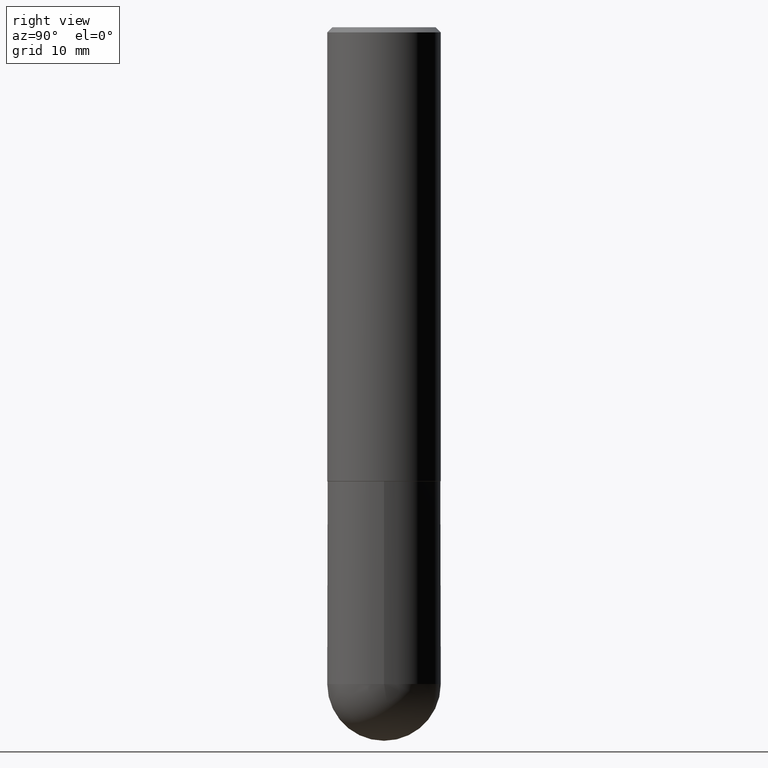
[diagram: clean part render]
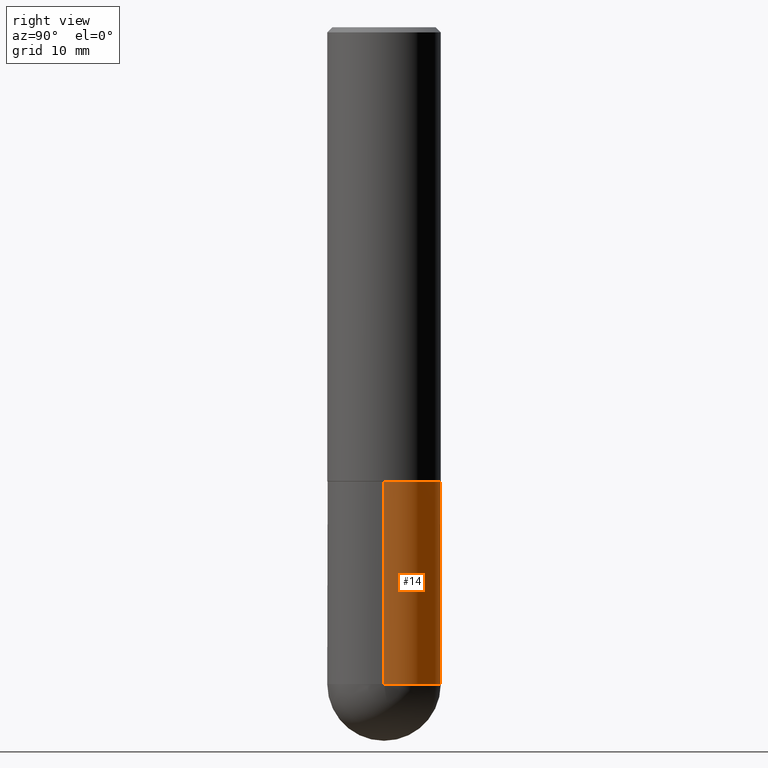
[diagram: same view with one face highlighted and labeled with its STEP entity id]
A machine part, right view. The second image highlights one B-rep face of the part: STEP entity #14.
In plain terms, the highlighted cylindrical surface (partial cylindrical patch) has radius 5.5562 mm, axis along (-0, 0, 1).
Its self-contained STEP definition (entity closure, byte-faithful):
#3 = ORIENTED_EDGE ( 'NONE', *, *, #5, .F. ) ;
#4 = CARTESIAN_POINT ( 'NONE',  ( -0.2187499999999999445, 1.554312234475218762E-15, -1.076017050993260482E-29 ) ) ;
#5 = EDGE_CURVE ( 'NONE', #64, #94, #175, .T. ) ;
#14 = ADVANCED_FACE ( 'NONE', ( #171 ), #291, .T. ) ;
#17 = ORIENTED_EDGE ( 'NONE', *, *, #140, .T. ) ;
#19 = VECTOR ( 'NONE', #24, 39.37007874015748143 ) ;
#22 = CARTESIAN_POINT ( 'NONE',  ( 0.2187499999999999445, -1.527523085743870449E-15, 1.066663669705360604E-29 ) ) ;
#23 = DIRECTION ( 'NONE',  ( -2.445468806185136597E-29, 3.491481338843145583E-15, 1.000000000000000000 ) ) ;
#24 = DIRECTION ( 'NONE',  ( -2.445468806185136877E-29, 3.491481338843145188E-15, 1.000000000000000000 ) ) ;
#36 = CARTESIAN_POINT ( 'NONE',  ( 0.2187499999999999445, -9.001475326704980594E-15, -2.531250000000000000 ) ) ;
#63 = DIRECTION ( 'NONE',  ( 1.000000000000000000, -6.982962677686266711E-15, 4.876176775795935232E-29 ) ) ;
#64 = VERTEX_POINT ( 'NONE', #155 ) ;
#67 = DIRECTION ( 'NONE',  ( -2.445468806185136597E-29, 3.491481338843145583E-15, 1.000000000000000000 ) ) ;
#68 = ORIENTED_EDGE ( 'NONE', *, *, #117, .T. ) ;
#77 = AXIS2_PLACEMENT_3D ( 'NONE', #321, #96, #247 ) ;
#94 = VERTEX_POINT ( 'NONE', #271 ) ;
#96 = DIRECTION ( 'NONE',  ( -2.445468806185136597E-29, 3.491481338843145583E-15, 1.000000000000000000 ) ) ;
#100 = ORIENTED_EDGE ( 'NONE', *, *, #131, .F. ) ;
#115 = EDGE_LOOP ( 'NONE', ( #17, #222, #3, #100, #68 ) ) ;
#117 = EDGE_CURVE ( 'NONE', #183, #288, #204, .T. ) ;
#131 = EDGE_CURVE ( 'NONE', #183, #64, #313, .T. ) ;
#140 = EDGE_CURVE ( 'NONE', #288, #257, #159, .T. ) ;
#141 = DIRECTION ( 'NONE',  ( 1.000000000000000000, -6.982962677686267499E-15, 0.000000000000000000 ) ) ;
#155 = CARTESIAN_POINT ( 'NONE',  ( 0.2187500000000000000, -7.637615428719375514E-15, -1.750000000000000000 ) ) ;
#159 = CIRCLE ( 'NONE', #263, 0.2187499999999999445 ) ;
#162 = CARTESIAN_POINT ( 'NONE',  ( 6.190092915656127011E-29, -8.837812138946710888E-15, -2.531250000000000000 ) ) ;
#171 = FACE_OUTER_BOUND ( 'NONE', #115, .T. ) ;
#175 = CIRCLE ( 'NONE', #269, 0.2187500000000000000 ) ;
#183 = VERTEX_POINT ( 'NONE', #36 ) ;
#191 = CARTESIAN_POINT ( 'NONE',  ( 1.527523085743931191E-15, 0.2187499999999910072, -2.531250000000000444 ) ) ;
#194 = LINE ( 'NONE', #4, #19 ) ;
#204 = CIRCLE ( 'NONE', #77, 0.2187499999999999445 ) ;
#222 = ORIENTED_EDGE ( 'NONE', *, *, #241, .T. ) ;
#241 = EDGE_CURVE ( 'NONE', #257, #94, #194, .T. ) ;
#247 = DIRECTION ( 'NONE',  ( 1.000000000000000000, -6.982962677686265133E-15, 0.000000000000000000 ) ) ;
#257 = VERTEX_POINT ( 'NONE', #379 ) ;
#263 = AXIS2_PLACEMENT_3D ( 'NONE', #162, #67, #310 ) ;
#269 = AXIS2_PLACEMENT_3D ( 'NONE', #311, #23, #141 ) ;
#271 = CARTESIAN_POINT ( 'NONE',  ( -0.2187500000000000000, -5.919640006485889806E-15, -1.750000000000000000 ) ) ;
#286 = DIRECTION ( 'NONE',  ( -2.445468806185136877E-29, 3.491481338843145188E-15, 1.000000000000000000 ) ) ;
#288 = VERTEX_POINT ( 'NONE', #191 ) ;
#291 = CYLINDRICAL_SURFACE ( 'NONE', #387, 0.2187499999999999445 ) ;
#293 = CARTESIAN_POINT ( 'NONE',  ( 0.000000000000000000, 0.000000000000000000, 0.000000000000000000 ) ) ;
#295 = DIRECTION ( 'NONE',  ( -2.445468806185136597E-29, 3.491481338843145583E-15, 1.000000000000000000 ) ) ;
#310 = DIRECTION ( 'NONE',  ( 1.000000000000000000, -6.982962677686265133E-15, 0.000000000000000000 ) ) ;
#311 = CARTESIAN_POINT ( 'NONE',  ( 4.279570410823988484E-29, -6.110092342975504671E-15, -1.750000000000000000 ) ) ;
#313 = LINE ( 'NONE', #22, #333 ) ;
#321 = CARTESIAN_POINT ( 'NONE',  ( 6.190092915656127011E-29, -8.837812138946710888E-15, -2.531250000000000000 ) ) ;
#333 = VECTOR ( 'NONE', #286, 39.37007874015748143 ) ;
#379 = CARTESIAN_POINT ( 'NONE',  ( -0.2187499999999999445, -5.919640006485891384E-15, -2.531250000000000000 ) ) ;
#387 = AXIS2_PLACEMENT_3D ( 'NONE', #293, #295, #63 ) ;